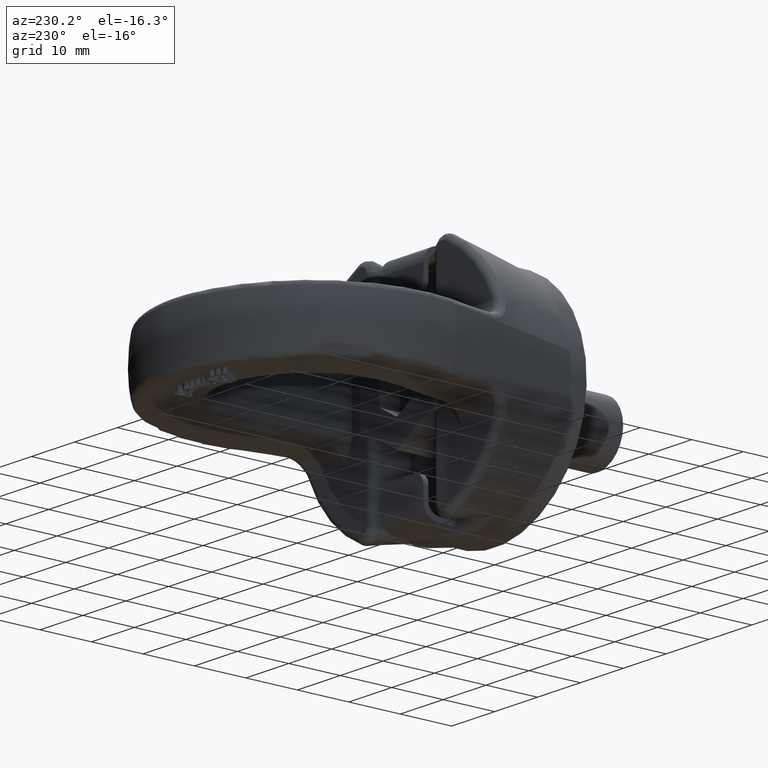
[diagram: clean part render]
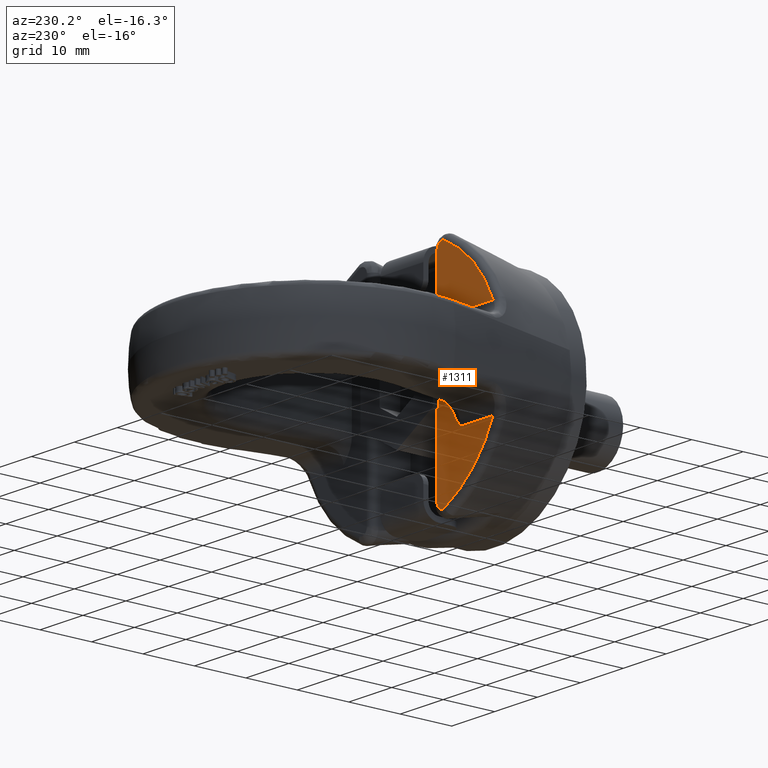
[diagram: same view with one face highlighted and labeled with its STEP entity id]
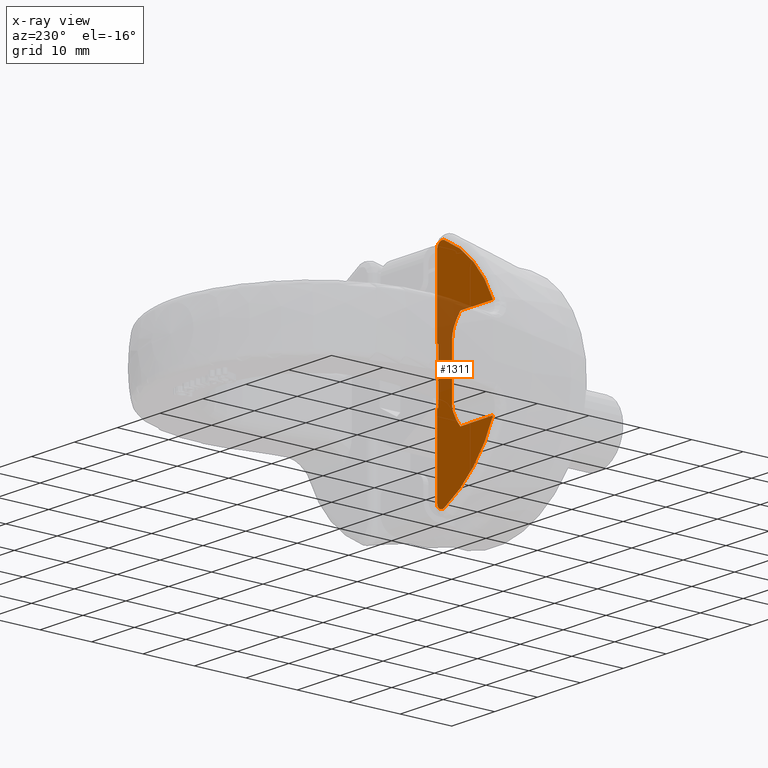
[diagram: x-ray of the same camera — body ghosted, the highlighted face saturated]
A machine part, auxiliary view. The second image highlights one B-rep face of the part: STEP entity #1311.
The next image is the same camera in x-ray: the body ghosted, the highlighted face saturated — about 21% of this face is hidden behind the body in this view.
In plain terms, the highlighted planar face has unit normal (0, 1, 0).
Its self-contained STEP definition (entity closure, byte-faithful):
#1091=FACE_OUTER_BOUND('',#1823,.T.);
#1311=ADVANCED_FACE('',(#1091),#1550,.T.);
#1550=PLANE('',#5126);
#1671=CIRCLE('',#5124,23.0585735614723);
#1672=CIRCLE('',#5125,23.0585735614723);
#1823=EDGE_LOOP('',(#2767,#2768,#2769,#2770,#2771,#2772,#2773,#2774,#2775,
#2776,#2777,#2778,#2779,#2780));
#2125=LINE('',#6575,#2405);
#2126=LINE('',#6577,#2406);
#2127=LINE('',#6579,#2407);
#2128=LINE('',#6581,#2408);
#2129=LINE('',#6583,#2409);
#2130=LINE('',#6607,#2410);
#2131=LINE('',#6614,#2411);
#2132=LINE('',#6621,#2412);
#2405=VECTOR('',#5437,1.);
#2406=VECTOR('',#5438,1.);
#2407=VECTOR('',#5439,1.);
#2408=VECTOR('',#5440,1.);
#2409=VECTOR('',#5441,1.);
#2410=VECTOR('',#5444,1.);
#2411=VECTOR('',#5445,1.);
#2412=VECTOR('',#5446,1.);
#2767=ORIENTED_EDGE('',*,*,#4331,.T.);
#2768=ORIENTED_EDGE('',*,*,#4332,.T.);
#2769=ORIENTED_EDGE('',*,*,#4333,.T.);
#2770=ORIENTED_EDGE('',*,*,#4334,.T.);
#2771=ORIENTED_EDGE('',*,*,#4335,.T.);
#2772=ORIENTED_EDGE('',*,*,#4336,.T.);
#2773=ORIENTED_EDGE('',*,*,#4337,.T.);
#2774=ORIENTED_EDGE('',*,*,#4338,.T.);
#2775=ORIENTED_EDGE('',*,*,#4339,.T.);
#2776=ORIENTED_EDGE('',*,*,#4340,.T.);
#2777=ORIENTED_EDGE('',*,*,#4341,.T.);
#2778=ORIENTED_EDGE('',*,*,#4342,.T.);
#2779=ORIENTED_EDGE('',*,*,#4343,.T.);
#2780=ORIENTED_EDGE('',*,*,#4344,.T.);
#3943=VERTEX_POINT('',#6573);
#3944=VERTEX_POINT('',#6574);
#3945=VERTEX_POINT('',#6576);
#3946=VERTEX_POINT('',#6578);
#3947=VERTEX_POINT('',#6580);
#3948=VERTEX_POINT('',#6582);
#3949=VERTEX_POINT('',#6584);
#3950=VERTEX_POINT('',#6604);
#3951=VERTEX_POINT('',#6606);
#3952=VERTEX_POINT('',#6608);
#3953=VERTEX_POINT('',#6613);
#3954=VERTEX_POINT('',#6615);
#3955=VERTEX_POINT('',#6620);
#3956=VERTEX_POINT('',#6622);
#4331=EDGE_CURVE('',#3943,#3944,#4875,.T.);
#4332=EDGE_CURVE('',#3944,#3945,#2125,.T.);
#4333=EDGE_CURVE('',#3945,#3946,#2126,.T.);
#4334=EDGE_CURVE('',#3946,#3947,#2127,.T.);
#4335=EDGE_CURVE('',#3947,#3948,#2128,.T.);
#4336=EDGE_CURVE('',#3948,#3949,#2129,.T.);
#4337=EDGE_CURVE('',#3949,#3950,#4876,.T.);
#4338=EDGE_CURVE('',#3950,#3951,#1671,.T.);
#4339=EDGE_CURVE('',#3951,#3952,#2130,.T.);
#4340=EDGE_CURVE('',#3952,#3953,#4877,.T.);
#4341=EDGE_CURVE('',#3953,#3954,#2131,.T.);
#4342=EDGE_CURVE('',#3954,#3955,#4878,.T.);
#4343=EDGE_CURVE('',#3955,#3956,#2132,.T.);
#4344=EDGE_CURVE('',#3956,#3943,#1672,.T.);
#4875=B_SPLINE_CURVE_WITH_KNOTS('',3,(#6554,#6555,#6556,#6557,#6558,#6559,
#6560,#6561,#6562,#6563,#6564,#6565,#6566,#6567,#6568,#6569,#6570,#6571,
#6572),.UNSPECIFIED.,.F.,.F.,(4,3,3,3,3,3,4),(0.,0.163143928497893,0.326341250432159,
0.488948773317029,0.6531592547778,0.820847093667726,1.),.UNSPECIFIED.);
#4876=B_SPLINE_CURVE_WITH_KNOTS('',3,(#6585,#6586,#6587,#6588,#6589,#6590,
#6591,#6592,#6593,#6594,#6595,#6596,#6597,#6598,#6599,#6600,#6601,#6602,
#6603),.UNSPECIFIED.,.F.,.F.,(4,3,3,3,3,3,4),(0.,0.173913740993882,0.34794975653833,
0.519970728914862,0.687916272468952,0.85218788622878,1.),.UNSPECIFIED.);
#4877=B_SPLINE_CURVE_WITH_KNOTS('',3,(#6609,#6610,#6611,#6612),
 .UNSPECIFIED.,.F.,.F.,(4,4),(0.,1.),.UNSPECIFIED.);
#4878=B_SPLINE_CURVE_WITH_KNOTS('',3,(#6616,#6617,#6618,#6619),
 .UNSPECIFIED.,.F.,.F.,(4,4),(0.,1.),.UNSPECIFIED.);
#5124=AXIS2_PLACEMENT_3D('',#6605,#5442,#5443);
#5125=AXIS2_PLACEMENT_3D('',#6623,#5447,#5448);
#5126=AXIS2_PLACEMENT_3D('',#6624,#5449,#5450);
#5437=DIRECTION('',(0.,0.,-1.));
#5438=DIRECTION('',(-0.866025403784442,1.28615169014872E-15,-0.499999999999994));
#5439=DIRECTION('',(0.,0.,-1.));
#5440=DIRECTION('',(0.866025403784443,-1.28615169014872E-15,-0.499999999999992));
#5441=DIRECTION('',(2.34291072916505E-15,0.,-1.));
#5442=DIRECTION('',(1.4851200490521E-15,1.,3.47950369702229E-30));
#5443=DIRECTION('',(1.,-1.50462340729982E-15,2.34291072916505E-15));
#5444=DIRECTION('',(1.,-1.4851200490521E-15,2.34291072916505E-15));
#5445=DIRECTION('',(0.,0.,1.));
#5446=DIRECTION('',(-1.,1.4851200490521E-15,-2.34206601248592E-31));
#5447=DIRECTION('',(1.4851200490521E-15,1.,0.));
#5448=DIRECTION('',(-1.,1.50462340729982E-15,0.));
#5449=DIRECTION('',(1.4851200490521E-15,1.,0.));
#5450=DIRECTION('',(-1.,1.48492329543615E-15,0.));
#6554=CARTESIAN_POINT('',(-9.90531520879815,18.,20.8226450122021));
#6555=CARTESIAN_POINT('',(-9.78649389450188,18.,20.8791682142705));
#6556=CARTESIAN_POINT('',(-9.65634064361183,18.,20.9161308543707));
#6557=CARTESIAN_POINT('',(-9.52551778788247,18.,20.9302289933248));
#6558=CARTESIAN_POINT('',(-9.39466572896146,18.,20.944330279364));
#6559=CARTESIAN_POINT('',(-9.25955769077133,18.,20.9359288782153));
#6560=CARTESIAN_POINT('',(-9.13144598612805,18.,20.9057875656159));
#6561=CARTESIAN_POINT('',(-9.00375929452358,18.,20.8757462473994));
#6562=CARTESIAN_POINT('',(-8.87954905156007,18.,20.8233256931006));
#6563=CARTESIAN_POINT('',(-8.76875334206026,18.,20.7531068724789));
#6564=CARTESIAN_POINT('',(-8.65685200514293,18.,20.6821873401269));
#6565=CARTESIAN_POINT('',(-8.55561372272319,18.,20.5912500896661));
#6566=CARTESIAN_POINT('',(-8.47274486446847,18.,20.4878854844839));
#6567=CARTESIAN_POINT('',(-8.38813368758687,18.,20.3823476373775));
#6568=CARTESIAN_POINT('',(-8.32038451426794,18.,20.2610559114222));
#6569=CARTESIAN_POINT('',(-8.27447115351668,18.,20.133818921008));
#6570=CARTESIAN_POINT('',(-8.22549573372484,18.,19.9980962268593));
#6571=CARTESIAN_POINT('',(-8.19999999999996,18.,19.851695633136));
#6572=CARTESIAN_POINT('',(-8.2,18.,19.7074068898094));
#6573=CARTESIAN_POINT('',(-9.90531520879815,18.,20.8226450122021));
#6574=CARTESIAN_POINT('',(-8.2,18.,19.7074068898094));
#6575=CARTESIAN_POINT('',(-8.2,18.,30.25));
#6576=CARTESIAN_POINT('',(-8.2,18.,5.08068236886872));
#6577=CARTESIAN_POINT('',(0.0944256456999765,18.,9.86947124818686));
#6578=CARTESIAN_POINT('',(-8.5,18.,4.90747728811183));
#6579=CARTESIAN_POINT('',(-8.5,18.,30.25));
#6580=CARTESIAN_POINT('',(-8.49999999999999,18.,-4.90747728811185));
#6581=CARTESIAN_POINT('',(3.59863423223959,18.,-11.892627018922));
#6582=CARTESIAN_POINT('',(-8.19999999999999,18.,-5.08068236886874));
#6583=CARTESIAN_POINT('',(-8.19999999999993,18.,-30.2500000000001));
#6584=CARTESIAN_POINT('',(-8.19999999999995,18.,-19.7074068898093));
#6585=CARTESIAN_POINT('',(-8.19999999999995,18.,-19.7074068898093));
#6586=CARTESIAN_POINT('',(-8.19999999999992,18.,-19.8475984672965));
#6587=CARTESIAN_POINT('',(-8.22403019668558,18.,-19.9897280138441));
#6588=CARTESIAN_POINT('',(-8.27029605568069,18.,-20.1220652674418));
#6589=CARTESIAN_POINT('',(-8.31657998890799,18.,-20.2544542199445));
#6590=CARTESIAN_POINT('',(-8.38645599770039,18.,-20.3807404755586));
#6591=CARTESIAN_POINT('',(-8.4744205070057,18.,-20.4899708848887));
#6592=CARTESIAN_POINT('',(-8.56135521419566,18.,-20.5979225318239));
#6593=CARTESIAN_POINT('',(-8.66847689034587,18.,-20.692256622393));
#6594=CARTESIAN_POINT('',(-8.78685429309542,18.,-20.7643537229484));
#6595=CARTESIAN_POINT('',(-8.9024595428984,18.,-20.8347624591277));
#6596=CARTESIAN_POINT('',(-9.03210022045371,18.,-20.8859368215231));
#6597=CARTESIAN_POINT('',(-9.16470424408269,18.,-20.9131054952076));
#6598=CARTESIAN_POINT('',(-9.29446715757253,18.,-20.9396920659351));
#6599=CARTESIAN_POINT('',(-9.43069080674374,18.,-20.9440349645498));
#6600=CARTESIAN_POINT('',(-9.56187906543489,18.,-20.9257346847158));
#6601=CARTESIAN_POINT('',(-9.68025775905727,18.,-20.9092212921204));
#6602=CARTESIAN_POINT('',(-9.79738029960468,18.,-20.8739895602634));
#6603=CARTESIAN_POINT('',(-9.90531520880011,18.,-20.8226450122011));
#6604=CARTESIAN_POINT('',(-9.90531520880011,18.,-20.8226450122011));
#6605=CARTESIAN_POINT('',(2.27704335976231E-13,18.,5.33490931836115E-28));
#6606=CARTESIAN_POINT('',(-21.2296447141686,18.,-9.00000000000006));
#6607=CARTESIAN_POINT('',(-6.99999999999998,18.,-9.00000000000002));
#6608=CARTESIAN_POINT('',(-13.6366331307683,18.,-9.00000000000004));
#6609=CARTESIAN_POINT('',(-13.6366331307683,18.,-9.00000000000004));
#6610=CARTESIAN_POINT('',(-12.5971688054422,18.,-7.83719916176284));
#6611=CARTESIAN_POINT('',(-11.6722781153861,18.,-6.44214330428344));
#6612=CARTESIAN_POINT('',(-11.6722781153861,18.,-4.866173821282));
#6613=CARTESIAN_POINT('',(-11.6722781153861,18.,-4.866173821282));
#6614=CARTESIAN_POINT('',(-11.6722781153861,18.,30.25));
#6615=CARTESIAN_POINT('',(-11.6722781153861,18.,4.86617382128198));
#6616=CARTESIAN_POINT('',(-11.6722781153861,18.,4.86617382128198));
#6617=CARTESIAN_POINT('',(-11.6722781153861,18.,6.44214330428342));
#6618=CARTESIAN_POINT('',(-12.5971688054416,18.,7.8371991617634));
#6619=CARTESIAN_POINT('',(-13.6366331307684,18.,9.00000000000001));
#6620=CARTESIAN_POINT('',(-13.6366331307684,18.,9.00000000000001));
#6621=CARTESIAN_POINT('',(-11.6722781153861,18.,9.00000000000001));
#6622=CARTESIAN_POINT('',(-21.2296447141688,18.,9.00000000000001));
#6623=CARTESIAN_POINT('',(-1.11938377458753E-13,18.,0.));
#6624=CARTESIAN_POINT('',(-11.6722781153861,18.,30.25));